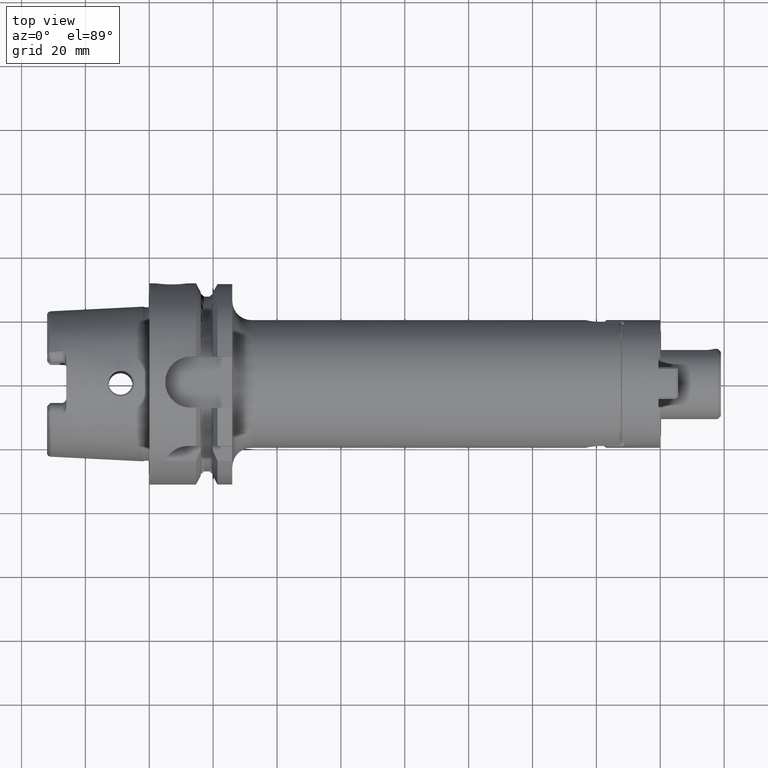
[diagram: clean part render]
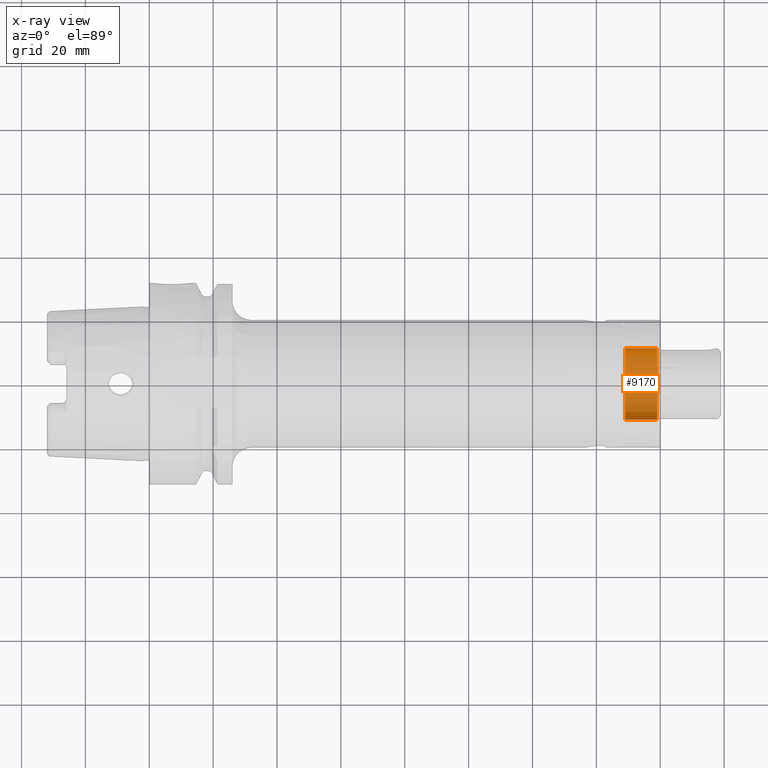
[diagram: x-ray — body ghosted, one internal face saturated and labeled with its STEP entity id]
A machine part, top view, then the same camera in x-ray: the body is ghosted and one INTERNAL B-rep face — a face not visible from any outside direction — is saturated and labeled: STEP entity #9170.
In plain terms, the highlighted cylindrical surface (edge-blend (fillet) strip) has radius 11.1825 mm, axis along (-1, 0, 0).
Its self-contained STEP definition (entity closure, byte-faithful):
#7811=CARTESIAN_POINT('',(0.E0,1.E0,0.E0));
#7812=DIRECTION('',(0.E0,-1.E0,0.E0));
#7813=DIRECTION('',(1.E0,0.E0,0.E0));
#7814=AXIS2_PLACEMENT_3D('',#7811,#7812,#7813);
#7816=DIRECTION('',(0.E0,-1.E0,0.E0));
#7817=VECTOR('',#7816,1.E1);
#7818=CARTESIAN_POINT('',(1.11825E1,1.1E1,0.E0));
#7819=LINE('',#7818,#7817);
#7820=CARTESIAN_POINT('',(0.E0,1.1E1,0.E0));
#7821=DIRECTION('',(0.E0,-1.E0,0.E0));
#7822=DIRECTION('',(1.E0,0.E0,0.E0));
#7823=AXIS2_PLACEMENT_3D('',#7820,#7821,#7822);
#7840=DIRECTION('',(0.E0,-1.E0,0.E0));
#7841=VECTOR('',#7840,1.E1);
#7842=CARTESIAN_POINT('',(-1.11825E1,1.1E1,0.E0));
#7843=LINE('',#7842,#7841);
#8174=CARTESIAN_POINT('',(1.11825E1,1.1E1,0.E0));
#8175=CARTESIAN_POINT('',(-1.11825E1,1.1E1,0.E0));
#8176=VERTEX_POINT('',#8174);
#8177=VERTEX_POINT('',#8175);
#8409=CARTESIAN_POINT('',(1.11825E1,1.E0,0.E0));
#8410=CARTESIAN_POINT('',(-1.11825E1,1.E0,0.E0));
#8411=VERTEX_POINT('',#8409);
#8412=VERTEX_POINT('',#8410);
#9156=CARTESIAN_POINT('',(0.E0,1.9875E1,0.E0));
#9157=DIRECTION('',(0.E0,-1.E0,0.E0));
#9158=DIRECTION('',(1.E0,0.E0,0.E0));
#9159=AXIS2_PLACEMENT_3D('',#9156,#9157,#9158);
#9160=CYLINDRICAL_SURFACE('',#9159,1.11825E1);
#9162=ORIENTED_EDGE('',*,*,#9161,.F.);
#9164=ORIENTED_EDGE('',*,*,#9163,.F.);
#9165=ORIENTED_EDGE('',*,*,#9149,.T.);
#9167=ORIENTED_EDGE('',*,*,#9166,.T.);
#9168=EDGE_LOOP('',(#9162,#9164,#9165,#9167));
#9169=FACE_OUTER_BOUND('',#9168,.F.);
#9170=ADVANCED_FACE('',(#9169),#9160,.F.);
#7815=CIRCLE('',#7814,1.11825E1);
#7824=CIRCLE('',#7823,1.11825E1);
#9149=EDGE_CURVE('',#8176,#8177,#7824,.T.);
#9161=EDGE_CURVE('',#8411,#8412,#7815,.T.);
#9163=EDGE_CURVE('',#8176,#8411,#7819,.T.);
#9166=EDGE_CURVE('',#8177,#8412,#7843,.T.);